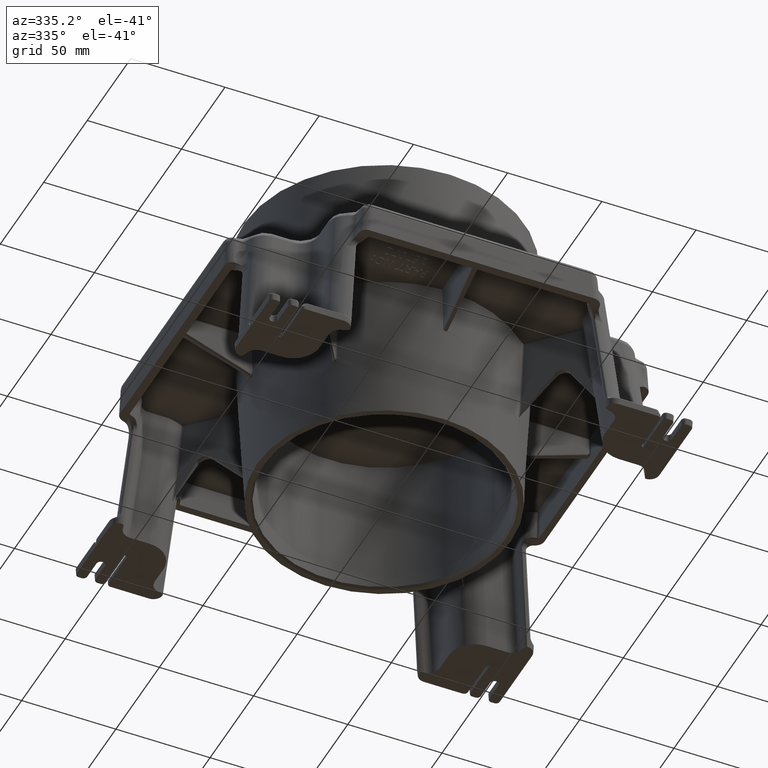
[diagram: clean part render]
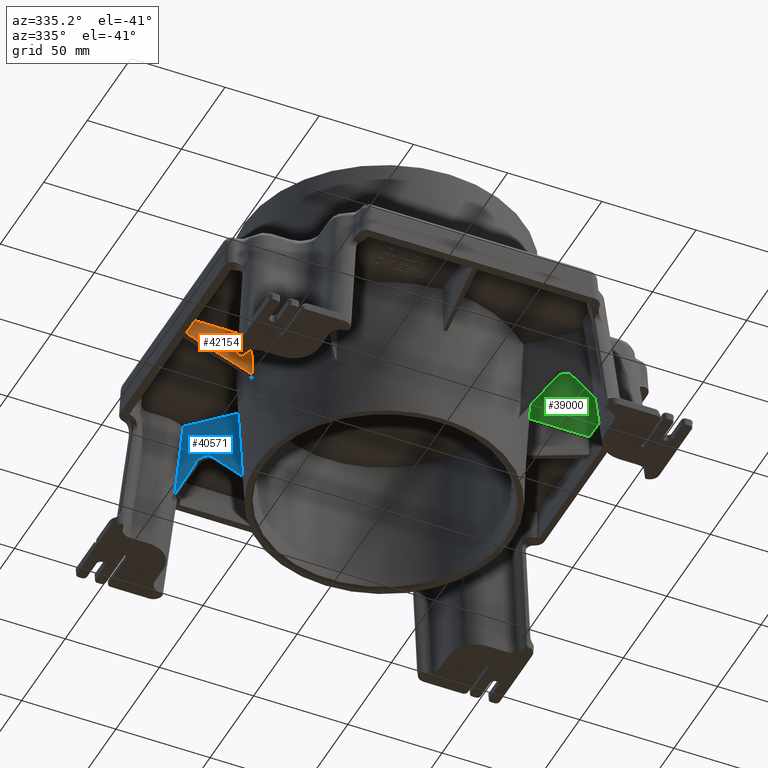
[diagram: same view with three faces highlighted in distinct colors, each labeled with its STEP entity id]
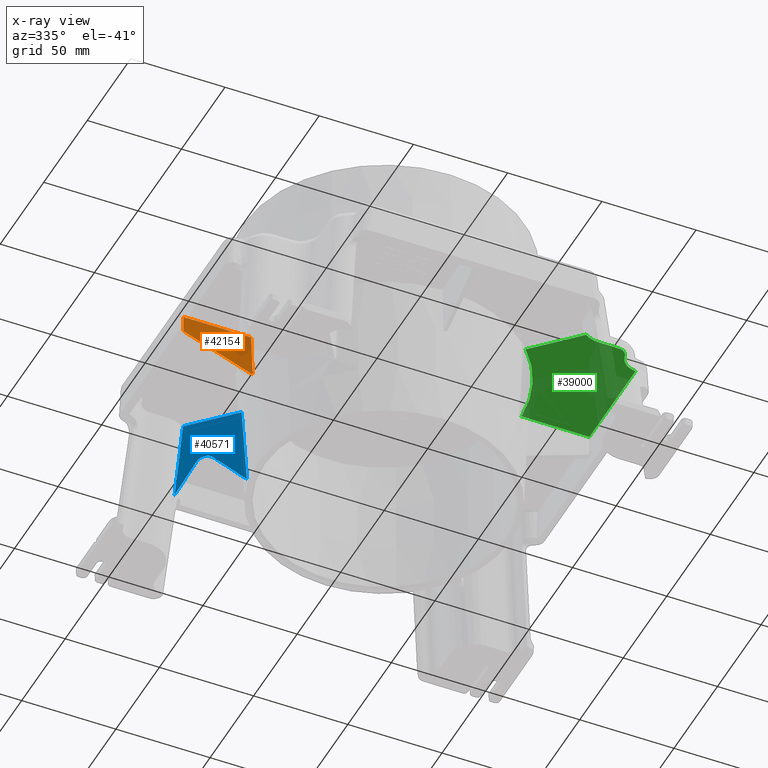
[diagram: x-ray of the same camera — body ghosted, the three highlighted faces saturated]
A machine part, auxiliary view with three faces highlighted in distinct colors.
The next image is the same camera in x-ray (body ghosted, the three faces saturated) — at least one of them is partly hidden behind the body in this view.
Their STEP definitions:

[orange] entity #42154 — the highlighted planar face has unit normal (-0, -0.9994, -0.0349).
#35569=CARTESIAN_POINT('',(-71.510199718103564,-1.96629794778797,-4.965100503297498));
#35570=VERTEX_POINT('',#35569);
#35584=CARTESIAN_POINT('',(-70.338435130864028,-1.174036993569437,-27.652485854463809));
#35585=VERTEX_POINT('',#35584);
#35586=CARTESIAN_POINT('',(-71.510199718103564,-1.96629794778797,-4.965100503297498));
#35587=CARTESIAN_POINT('',(-70.921546750759461,-1.566895168664261,-16.402499648184413));
#35588=CARTESIAN_POINT('',(-70.338435130862166,-1.174036993568189,-27.652485854499563));
#35596=(BOUNDED_CURVE()B_SPLINE_CURVE(2,(#35586,#35587,#35588),.UNSPECIFIED.,.F.,.U.)B_SPLINE_CURVE_WITH_KNOTS((3,3),(0.095856083024343,2.368671621617451),.UNSPECIFIED.)CURVE()GEOMETRIC_REPRESENTATION_ITEM()RATIONAL_B_SPLINE_CURVE((1.000001746348951,1.000021626120324,1.000002439507311))REPRESENTATION_ITEM(''));
#35597=EDGE_CURVE('',#35570,#35585,#35596,.T.);
#42043=CARTESIAN_POINT('',(-107.32850686158143,-1.658432656716281,-13.781208955444795));
#42044=VERTEX_POINT('',#42043);
#42054=CARTESIAN_POINT('',(-70.338435130864028,-1.174036993569437,-27.652485854463816));
#42055=DIRECTION('',(-0.936258799579951,-0.012260579146782,0.351097049842482));
#42056=VECTOR('',#42055,39.508383523137887);
#42057=LINE('',#42054,#42056);
#42058=EDGE_CURVE('',#35585,#42044,#42057,.T.);
#42119=CARTESIAN_POINT('',(-107.48239260702786,-1.966297947787965,-4.965100503297498));
#42120=VERTEX_POINT('',#42119);
#42121=CARTESIAN_POINT('',(-107.32850686158143,-1.658432656716281,-13.781208955444795));
#42122=DIRECTION('',(-0.017441778138094,-0.034894187812614,0.999238800303651));
#42123=VECTOR('',#42122,8.822824383388872);
#42124=LINE('',#42121,#42123);
#42125=EDGE_CURVE('',#42044,#42120,#42124,.T.);
#42138=CARTESIAN_POINT('',(-86.951580425783263,-1.670897582708284,-13.424260177585072));
#42139=DIRECTION('',(-1.160938E-016,-0.999390827019096,-0.034899496702501));
#42140=DIRECTION('',(-4.164054E-018,-0.034899496702501,0.999390827019096));
#42141=AXIS2_PLACEMENT_3D('',#42138,#42139,#42140);
#42142=PLANE('',#42141);
#42143=ORIENTED_EDGE('',*,*,#42058,.F.);
#42144=ORIENTED_EDGE('',*,*,#35597,.F.);
#42145=CARTESIAN_POINT('',(-107.48239260702786,-1.966297947787965,-4.965100503297498));
#42146=DIRECTION('',(1.0,0.0,0.0));
#42147=VECTOR('',#42146,35.972192888924297);
#42148=LINE('',#42145,#42147);
#42149=EDGE_CURVE('',#42120,#35570,#42148,.T.);
#42150=ORIENTED_EDGE('',*,*,#42149,.F.);
#42151=ORIENTED_EDGE('',*,*,#42125,.F.);
#42152=EDGE_LOOP('',(#42143,#42144,#42150,#42151));
#42153=FACE_OUTER_BOUND('',#42152,.T.);
#42154=ADVANCED_FACE('',(#42153),#42142,.T.);

[blue] entity #40571 — the highlighted planar face has unit normal (-0.7067, -0.7067, -0.0349).
#39295=CARTESIAN_POINT('',(-76.3216030956238,75.57580059964414,-46.170834695214666));
#39296=VERTEX_POINT('',#39295);
#39359=CARTESIAN_POINT('',(-50.068444338967232,49.368608751328566,-47.101613514576215));
#39360=VERTEX_POINT('',#39359);
#40271=CARTESIAN_POINT('',(-73.889515664679365,71.108750439252134,-4.965100503297513));
#40272=VERTEX_POINT('',#40271);
#40280=CARTESIAN_POINT('',(-52.638738137979729,49.857972912551801,-4.965100503297508));
#40281=VERTEX_POINT('',#40280);
#40282=CARTESIAN_POINT('',(-73.889515664679351,71.108750439252134,-4.965100503297499));
#40283=DIRECTION('',(0.707106781186535,-0.70710678118656,0.0));
#40284=VECTOR('',#40283,30.053137789232487);
#40285=LINE('',#40282,#40284);
#40286=EDGE_CURVE('',#40272,#40281,#40285,.T.);
#40336=CARTESIAN_POINT('',(-52.638738142855658,49.85797291744511,-4.96510050364971));
#40337=CARTESIAN_POINT('',(-51.785161999358365,49.698051392849962,-19.010835805759822));
#40338=CARTESIAN_POINT('',(-50.928495155071275,49.535028185763046,-33.056348740606744));
#40339=CARTESIAN_POINT('',(-50.068444338967232,49.368608751328566,-47.101613514576215));
#40340=B_SPLINE_CURVE_WITH_KNOTS('',3,(#40336,#40337,#40338,#40339),.UNSPECIFIED.,.F.,.U.,(4,4),(0.195262158238769,4.417029097149679),.UNSPECIFIED.);
#40341=EDGE_CURVE('',#40281,#39360,#40340,.T.);
#40371=CARTESIAN_POINT('',(-89.699046703332385,91.112398765014078,-89.891315416941978));
#40372=DIRECTION('',(-0.706676030840847,-0.706676030840823,-0.034899496702501));
#40373=DIRECTION('',(0.062388022237851,-0.111369417397993,0.991818827987088));
#40374=AXIS2_PLACEMENT_3D('',#40371,#40372,#40373);
#40375=ELLIPSE('',#40374,433.08297668577006,15.000000000000014);
#40376=EDGE_CURVE('',#39296,#40272,#40375,.T.);
#40519=CARTESIAN_POINT('',(-62.701940734590131,61.07810929389025,-28.39172415653956));
#40520=VERTEX_POINT('',#40519);
#40521=CARTESIAN_POINT('',(-50.068444338967232,49.368608751328559,-47.101613514576215));
#40522=DIRECTION('',(-0.496759381388635,0.460427110891343,0.735688108207977));
#40523=VECTOR('',#40522,25.431822465652015);
#40524=LINE('',#40521,#40523);
#40525=EDGE_CURVE('',#39360,#40520,#40524,.T.);
#40545=CARTESIAN_POINT('',(-97.103841776014434,96.496405021320228,-48.972587215859306));
#40546=DIRECTION('',(-0.706676030840847,-0.706676030840823,-0.034899496702501));
#40547=DIRECTION('',(-0.024677670778336,-0.024677670778336,0.999390827019096));
#40548=AXIS2_PLACEMENT_3D('',#40545,#40546,#40547);
#40549=PLANE('',#40548);
#40550=ORIENTED_EDGE('',*,*,#40341,.F.);
#40551=ORIENTED_EDGE('',*,*,#40286,.F.);
#40552=ORIENTED_EDGE('',*,*,#40376,.F.);
#40553=CARTESIAN_POINT('',(-68.795419990161321,67.206167581337596,-29.091911130715875));
#40554=VERTEX_POINT('',#40553);
#40555=CARTESIAN_POINT('',(-68.795419990161321,67.20616758133761,-29.091911130715879));
#40556=DIRECTION('',(-0.367948756999888,0.409184313280386,-0.83497419719863));
#40557=VECTOR('',#40556,20.454432749897208);
#40558=LINE('',#40555,#40557);
#40559=EDGE_CURVE('',#40554,#39296,#40558,.T.);
#40560=ORIENTED_EDGE('',*,*,#40559,.F.);
#40561=CARTESIAN_POINT('',(-65.47208968957888,64.032160236826428,-32.115535076054428));
#40562=DIRECTION('',(-0.706676030840847,-0.706676030840823,-0.034899496702501));
#40563=DIRECTION('',(-0.024677670777682,-0.02467767077899,0.999390827019096));
#40564=AXIS2_PLACEMENT_3D('',#40561,#40562,#40563);
#40565=ELLIPSE('',#40564,5.503352493643527,5.500000000000002);
#40566=EDGE_CURVE('',#40520,#40554,#40565,.T.);
#40567=ORIENTED_EDGE('',*,*,#40566,.F.);
#40568=ORIENTED_EDGE('',*,*,#40525,.F.);
#40569=EDGE_LOOP('',(#40550,#40551,#40552,#40560,#40567,#40568));
#40570=FACE_OUTER_BOUND('',#40569,.T.);
#40571=ADVANCED_FACE('',(#40570),#40549,.T.);

[green] entity #39000 — the highlighted planar face has unit normal (0, 0, 1).
#35353=CARTESIAN_POINT('',(71.526350181211924,-2.965688774807076,-4.000000000000004));
#35354=VERTEX_POINT('',#35353);
#35368=CARTESIAN_POINT('',(52.673825890213394,-48.479708603103795,-4.000000000000004));
#35369=VERTEX_POINT('',#35368);
#35370=CARTESIAN_POINT('',(0.0,0.0,-4.000000000000004));
#35371=DIRECTION('',(0.0,0.0,-1.0));
#35372=DIRECTION('',(1.0,0.0,0.0));
#35373=AXIS2_PLACEMENT_3D('',#35370,#35371,#35372);
#35374=CIRCLE('',#35373,71.587806784077216);
#35375=EDGE_CURVE('',#35369,#35354,#35374,.F.);
#36052=CARTESIAN_POINT('',(74.59619169552019,-70.402074408411323,-4.0));
#36053=VERTEX_POINT('',#36052);
#36089=CARTESIAN_POINT('',(52.673825890213394,-48.479708603103795,-4.0));
#36090=DIRECTION('',(0.707106781186536,-0.707106781186559,0.0));
#36091=VECTOR('',#36090,31.002907041169568);
#36092=LINE('',#36089,#36091);
#36093=EDGE_CURVE('',#35369,#36053,#36092,.T.);
#38930=CARTESIAN_POINT('',(82.861264601289093,-67.918344129912896,-4.0));
#38931=VERTEX_POINT('',#38930);
#38932=CARTESIAN_POINT('',(82.97564169306311,-82.975641693063096,-4.0));
#38933=DIRECTION('',(0.0,0.0,-1.0));
#38934=DIRECTION('',(-0.707106781186548,0.707106781186548,0.0));
#38935=AXIS2_PLACEMENT_3D('',#38932,#38933,#38934);
#38936=ELLIPSE('',#38935,15.114377916755247,15.000000000000004);
#38937=EDGE_CURVE('',#36053,#38931,#38936,.T.);
#38950=CARTESIAN_POINT('',(0.0,0.0,-4.0));
#38951=DIRECTION('',(0.0,0.0,1.0));
#38952=DIRECTION('',(1.0,0.0,0.0));
#38953=AXIS2_PLACEMENT_3D('',#38950,#38951,#38952);
#38954=PLANE('',#38953);
#38955=ORIENTED_EDGE('',*,*,#36093,.F.);
#38956=ORIENTED_EDGE('',*,*,#35375,.T.);
#38957=CARTESIAN_POINT('',(107.5173027368843,-2.965688774807074,-4.0));
#38958=VERTEX_POINT('',#38957);
#38959=CARTESIAN_POINT('',(107.51730273688432,-2.965688774807075,-4.0));
#38960=DIRECTION('',(-1.0,0.0,0.0));
#38961=VECTOR('',#38960,35.990952555672393);
#38962=LINE('',#38959,#38961);
#38963=EDGE_CURVE('',#38958,#35354,#38962,.T.);
#38964=ORIENTED_EDGE('',*,*,#38963,.F.);
#38965=CARTESIAN_POINT('',(107.5173027368843,-56.190417499222889,-4.0));
#38966=VERTEX_POINT('',#38965);
#38967=CARTESIAN_POINT('',(107.5173027368843,-56.190417499222889,-4.0));
#38968=DIRECTION('',(0.0,1.0,0.0));
#38969=VECTOR('',#38968,53.224728724415812);
#38970=LINE('',#38967,#38969);
#38971=EDGE_CURVE('',#38966,#38958,#38970,.T.);
#38972=ORIENTED_EDGE('',*,*,#38971,.F.);
#38973=CARTESIAN_POINT('',(98.14927257660446,-64.006846156464519,-4.0));
#38974=VERTEX_POINT('',#38973);
#38975=CARTESIAN_POINT('',(107.95654250534638,-66.222048585001261,-4.0));
#38976=DIRECTION('',(0.0,0.0,-1.0));
#38977=DIRECTION('',(-0.707106781186548,0.707106781186548,0.0));
#38978=AXIS2_PLACEMENT_3D('',#38975,#38976,#38977);
#38979=ELLIPSE('',#38978,10.076251944503495,10.0);
#38980=EDGE_CURVE('',#38974,#38966,#38979,.T.);
#38981=ORIENTED_EDGE('',*,*,#38980,.F.);
#38982=CARTESIAN_POINT('',(93.283763309491519,-67.918344129912896,-4.0));
#38983=VERTEX_POINT('',#38982);
#38984=CARTESIAN_POINT('',(93.245637612233509,-62.899244942196134,-4.0));
#38985=DIRECTION('',(0.0,0.0,1.0));
#38986=DIRECTION('',(0.707106781186542,-0.707106781186553,0.0));
#38987=AXIS2_PLACEMENT_3D('',#38984,#38985,#38986);
#38988=ELLIPSE('',#38987,5.038125972251754,5.000000000000006);
#38989=EDGE_CURVE('',#38983,#38974,#38988,.T.);
#38990=ORIENTED_EDGE('',*,*,#38989,.F.);
#38991=CARTESIAN_POINT('',(82.861264601289093,-67.918344129912896,-4.0));
#38992=DIRECTION('',(1.0,0.0,0.0));
#38993=VECTOR('',#38992,10.422498708202426);
#38994=LINE('',#38991,#38993);
#38995=EDGE_CURVE('',#38931,#38983,#38994,.T.);
#38996=ORIENTED_EDGE('',*,*,#38995,.F.);
#38997=ORIENTED_EDGE('',*,*,#38937,.F.);
#38998=EDGE_LOOP('',(#38955,#38956,#38964,#38972,#38981,#38990,#38996,#38997));
#38999=FACE_OUTER_BOUND('',#38998,.T.);
#39000=ADVANCED_FACE('',(#38999),#38954,.F.);